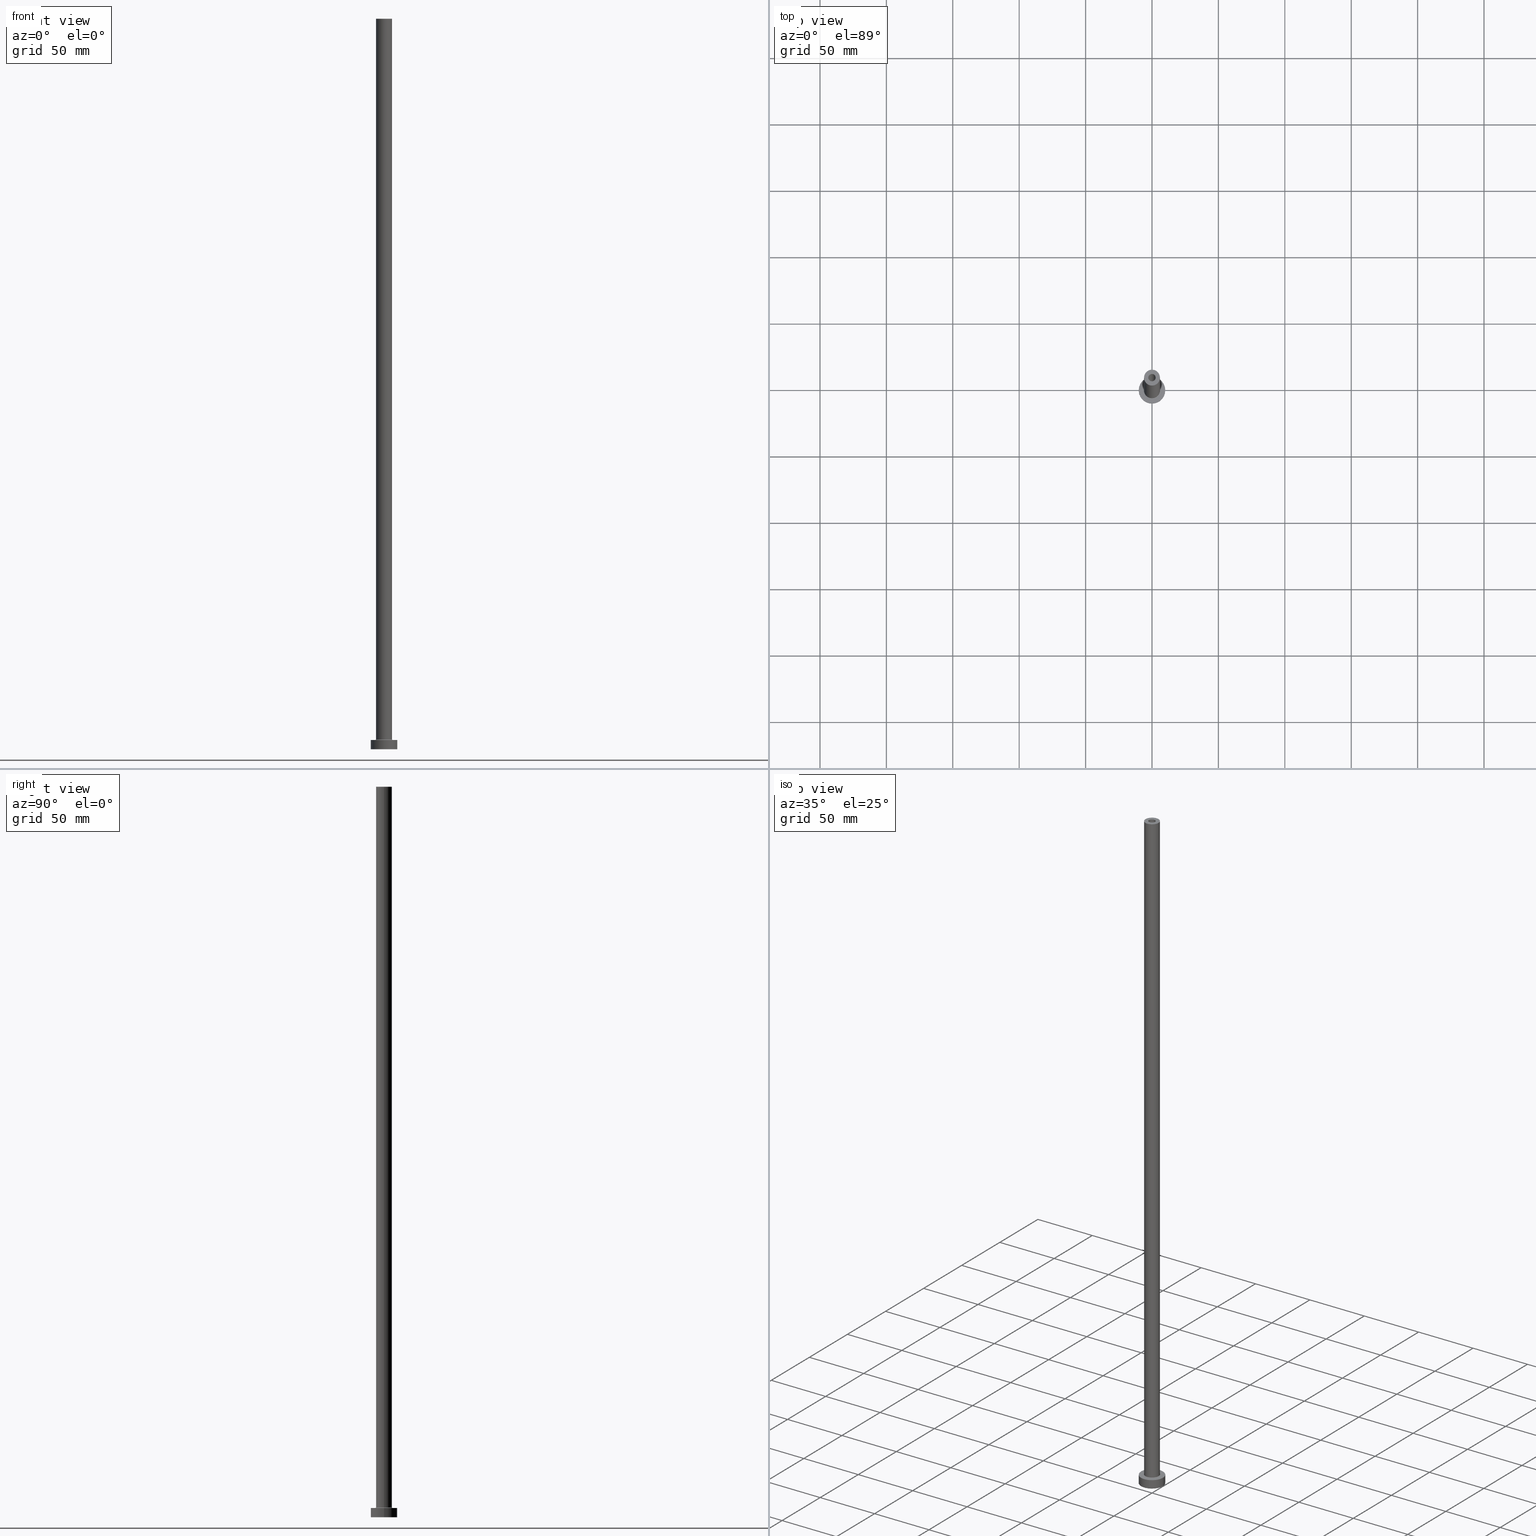
[diagram: canonical four-view strip — front | top / right | iso, engineering-drawing reading convention]
A machine part, canonical four-view strip (front | top / right | iso — engineering-drawing reading convention). The complete STEP part file that produces these views, byte-faithful:
ISO-10303-21;
HEADER;
FILE_DESCRIPTION (( 'STEP AP203' ),
    '1' );
FILE_NAME ('c97c.STEP',
    '2023-02-13T15:53:16',
    ( '' ),
    ( '' ),
    'SwSTEP 2.0',
    'SolidWorks 2019',
    '' );
FILE_SCHEMA (( 'CONFIG_CONTROL_DESIGN' ));
ENDSEC;

DATA;
#1 = DIRECTION ( 'NONE',  ( 1.000000000000000000, 0.000000000000000000, 0.000000000000000000 ) ) ;
#2 = AXIS2_PLACEMENT_3D ( 'NONE', #391, #382, #165 ) ;
#3 = APPROVAL_PERSON_ORGANIZATION ( #127, #420, #446 ) ;
#4 = PRODUCT ( 'c97c', 'c97c', '', ( #365 ) ) ;
#5 = FACE_OUTER_BOUND ( 'NONE', #49, .T. ) ;
#6 = COORDINATED_UNIVERSAL_TIME_OFFSET ( 1, 0, .AHEAD. ) ;
#7 = PLANE ( 'NONE',  #419 ) ;
#8 = CYLINDRICAL_SURFACE ( 'NONE', #136, 10.00000000000000000 ) ;
#9 = VERTEX_POINT ( 'NONE', #356 ) ;
#10 = CIRCLE ( 'NONE', #328, 0.5000000000000004441 ) ;
#11 = FACE_OUTER_BOUND ( 'NONE', #449, .T. ) ;
#12 = DIRECTION ( 'NONE',  ( 1.000000000000000000, 0.000000000000000000, 0.000000000000000000 ) ) ;
#13 = DIRECTION ( 'NONE',  ( 1.000000000000000000, 0.000000000000000000, -0.000000000000000000 ) ) ;
#14 = ORIENTED_EDGE ( 'NONE', *, *, #34, .F. ) ;
#15 = PERSON_AND_ORGANIZATION ( #164, #341 ) ;
#16 = UNCERTAINTY_MEASURE_WITH_UNIT (LENGTH_MEASURE( 1.000000000000000082E-05 ), #322, 'distance_accuracy_value', 'NONE');
#17 = EDGE_CURVE ( 'NONE', #78, #46, #110, .T. ) ;
#18 = DIRECTION ( 'NONE',  ( 0.000000000000000000, 0.000000000000000000, 1.000000000000000000 ) ) ;
#19 = DIRECTION ( 'NONE',  ( -1.000000000000000000, 1.224646799147351482E-16, 0.000000000000000000 ) ) ;
#20 = CIRCLE ( 'NONE', #133, 2.750000000000000000 ) ;
#21 = ORIENTED_EDGE ( 'NONE', *, *, #119, .F. ) ;
#22 = CC_DESIGN_DATE_AND_TIME_ASSIGNMENT ( #293, #433, ( #58 ) ) ;
#23 = EDGE_LOOP ( 'NONE', ( #443, #396, #50, #105 ) ) ;
#24 = CIRCLE ( 'NONE', #401, 2.750000000000000000 ) ;
#25 = DIRECTION ( 'NONE',  ( 1.000000000000000000, 0.000000000000000000, 0.000000000000000000 ) ) ;
#26 = FACE_OUTER_BOUND ( 'NONE', #415, .T. ) ;
#27 = FACE_OUTER_BOUND ( 'NONE', #381, .T. ) ;
#28 = DIRECTION ( 'NONE',  ( 0.000000000000000000, 0.000000000000000000, 1.000000000000000000 ) ) ;
#29 = DIRECTION ( 'NONE',  ( 0.000000000000000000, 0.000000000000000000, 1.000000000000000000 ) ) ;
#30 = DIRECTION ( 'NONE',  ( 0.000000000000000000, 0.000000000000000000, 1.000000000000000000 ) ) ;
#31 = PERSON_AND_ORGANIZATION ( #164, #341 ) ;
#32 = CARTESIAN_POINT ( 'NONE',  ( 0.000000000000000000, 0.000000000000000000, 550.0000000000000000 ) ) ;
#33 = DIRECTION ( 'NONE',  ( -0.000000000000000000, -0.000000000000000000, -1.000000000000000000 ) ) ;
#34 = EDGE_CURVE ( 'NONE', #129, #225, #292, .T. ) ;
#35 = AXIS2_PLACEMENT_3D ( 'NONE', #423, #232, #368 ) ;
#36 = DIRECTION ( 'NONE',  ( 0.000000000000000000, 0.000000000000000000, 1.000000000000000000 ) ) ;
#37 = CARTESIAN_POINT ( 'NONE',  ( 0.000000000000000000, 0.000000000000000000, 7.000000000000000000 ) ) ;
#38 = CARTESIAN_POINT ( 'NONE',  ( -6.000000000000000888, 0.000000000000000000, 7.499999999999951150 ) ) ;
#39 = CARTESIAN_POINT ( 'NONE',  ( 0.000000000000000000, 0.000000000000000000, 7.000000000000000000 ) ) ;
#40 = DIRECTION ( 'NONE',  ( 1.000000000000000000, 0.000000000000000000, 0.000000000000000000 ) ) ;
#41 = APPROVAL_DATE_TIME ( #357, #408 ) ;
#42 = DIRECTION ( 'NONE',  ( -1.000000000000000000, 0.000000000000000000, 0.000000000000000000 ) ) ;
#43 = CYLINDRICAL_SURFACE ( 'NONE', #206, 2.750000000000000000 ) ;
#44 = DIRECTION ( 'NONE',  ( 0.000000000000000000, 0.000000000000000000, -1.000000000000000000 ) ) ;
#45 = PERSON_AND_ORGANIZATION_ROLE ( 'design_owner' ) ;
#46 = VERTEX_POINT ( 'NONE', #211 ) ;
#47 = CARTESIAN_POINT ( 'NONE',  ( -10.00000000000000000, 0.000000000000000000, 0.000000000000000000 ) ) ;
#48 = LOCAL_TIME ( 16, 53, 16.00000000000000000, #351 ) ;
#49 = EDGE_LOOP ( 'NONE', ( #377, #74, #88, #384 ) ) ;
#50 = ORIENTED_EDGE ( 'NONE', *, *, #234, .T. ) ;
#51 = AXIS2_PLACEMENT_3D ( 'NONE', #337, #70, #42 ) ;
#52 = CARTESIAN_POINT ( 'NONE',  ( 0.000000000000000000, 0.000000000000000000, 7.000000000000000000 ) ) ;
#53 = ORIENTED_EDGE ( 'NONE', *, *, #119, .T. ) ;
#54 = EDGE_CURVE ( 'NONE', #159, #332, #224, .T. ) ;
#55 = EDGE_CURVE ( 'NONE', #129, #301, #20, .T. ) ;
#56 = AXIS2_PLACEMENT_3D ( 'NONE', #262, #148, #118 ) ;
#57 = VECTOR ( 'NONE', #190, 1000.000000000000000 ) ;
#58 = PRODUCT_DEFINITION ( 'NEZN�M�', '', #166, #447 ) ;
#59 = ORIENTED_EDGE ( 'NONE', *, *, #234, .F. ) ;
#60 = CARTESIAN_POINT ( 'NONE',  ( -6.500000000000000888, 7.960204194457796463E-16, 7.499999999999951150 ) ) ;
#61 = AXIS2_PLACEMENT_3D ( 'NONE', #424, #389, #1 ) ;
#62 = DIRECTION ( 'NONE',  ( 1.000000000000000000, 0.000000000000000000, -0.000000000000000000 ) ) ;
#63 = EDGE_CURVE ( 'NONE', #268, #143, #404, .T. ) ;
#64 = DIRECTION ( 'NONE',  ( 0.000000000000000000, 0.000000000000000000, -1.000000000000000000 ) ) ;
#65 = DIRECTION ( 'NONE',  ( -0.000000000000000000, -0.000000000000000000, -1.000000000000000000 ) ) ;
#66 = CC_DESIGN_PERSON_AND_ORGANIZATION_ASSIGNMENT ( #451, #163, ( #166 ) ) ;
#67 = ADVANCED_FACE ( 'NONE', ( #11 ), #242, .F. ) ;
#68 = VECTOR ( 'NONE', #33, 1000.000000000000000 ) ;
#69 = PLANE ( 'NONE',  #2 ) ;
#70 = DIRECTION ( 'NONE',  ( 0.000000000000000000, 0.000000000000000000, -1.000000000000000000 ) ) ;
#71 = CC_DESIGN_PERSON_AND_ORGANIZATION_ASSIGNMENT ( #31, #318, ( #58 ) ) ;
#72 = APPROVAL_DATE_TIME ( #393, #440 ) ;
#73 = CARTESIAN_POINT ( 'NONE',  ( 0.000000000000000000, 0.000000000000000000, 505.0000000000000000 ) ) ;
#74 = ORIENTED_EDGE ( 'NONE', *, *, #314, .T. ) ;
#75 = FACE_OUTER_BOUND ( 'NONE', #409, .T. ) ;
#76 = CARTESIAN_POINT ( 'NONE',  ( -2.750000000000000000, 0.000000000000000000, 550.0000000000000000 ) ) ;
#77 = DIRECTION ( 'NONE',  ( -1.000000000000000000, 0.000000000000000000, 0.000000000000000000 ) ) ;
#78 = VERTEX_POINT ( 'NONE', #91 ) ;
#79 = FACE_BOUND ( 'NONE', #280, .T. ) ;
#80 = DIRECTION ( 'NONE',  ( 1.000000000000000000, 0.000000000000000000, 0.000000000000000000 ) ) ;
#81 = EDGE_CURVE ( 'NONE', #301, #218, #192, .T. ) ;
#82 = CARTESIAN_POINT ( 'NONE',  ( 0.000000000000000000, 0.000000000000000000, 550.0000000000000000 ) ) ;
#83 = AXIS2_PLACEMENT_3D ( 'NONE', #402, #85, #442 ) ;
#84 = CIRCLE ( 'NONE', #261, 2.899999999999999911 ) ;
#85 = DIRECTION ( 'NONE',  ( 0.000000000000000000, -1.000000000000000000, 0.000000000000000000 ) ) ;
#86 = ORIENTED_EDGE ( 'NONE', *, *, #147, .F. ) ;
#87 = CARTESIAN_POINT ( 'NONE',  ( 2.899999999999999911, 3.551475717527323832E-16, 513.2024386617638356 ) ) ;
#88 = ORIENTED_EDGE ( 'NONE', *, *, #34, .T. ) ;
#89 = DIRECTION ( 'NONE',  ( 0.000000000000000000, 0.000000000000000000, 1.000000000000000000 ) ) ;
#90 = ORIENTED_EDGE ( 'NONE', *, *, #137, .F. ) ;
#91 = CARTESIAN_POINT ( 'NONE',  ( 10.00000000000000000, 1.224646799147353256E-15, 7.000000000000000000 ) ) ;
#92 = ADVANCED_FACE ( 'NONE', ( #444 ), #273, .F. ) ;
#93 = ORIENTED_EDGE ( 'NONE', *, *, #287, .F. ) ;
#94 = AXIS2_PLACEMENT_3D ( 'NONE', #417, #89, #195 ) ;
#95 = ORIENTED_EDGE ( 'NONE', *, *, #461, .F. ) ;
#96 = COORDINATED_UNIVERSAL_TIME_OFFSET ( 1, 0, .AHEAD. ) ;
#97 = APPROVAL_STATUS ( 'not_yet_approved' ) ;
#98 = CARTESIAN_POINT ( 'NONE',  ( 0.000000000000000000, 0.000000000000000000, 0.000000000000000000 ) ) ;
#99 = CC_DESIGN_PERSON_AND_ORGANIZATION_ASSIGNMENT ( #196, #122, ( #429 ) ) ;
#100 = ORIENTED_EDGE ( 'NONE', *, *, #193, .F. ) ;
#101 = EDGE_CURVE ( 'NONE', #46, #156, #114, .T. ) ;
#102 = FACE_OUTER_BOUND ( 'NONE', #230, .T. ) ;
#103 = ORIENTED_EDGE ( 'NONE', *, *, #385, .F. ) ;
#104 = APPROVAL_STATUS ( 'not_yet_approved' ) ;
#105 = ORIENTED_EDGE ( 'NONE', *, *, #137, .T. ) ;
#106 = CARTESIAN_POINT ( 'NONE',  ( -6.000000000000000888, 0.000000000000000000, 550.0000000000000000 ) ) ;
#107 = PERSON_AND_ORGANIZATION ( #164, #341 ) ;
#108 = PLANE ( 'NONE',  #112 ) ;
#109 = CARTESIAN_POINT ( 'NONE',  ( 0.000000000000000000, 0.000000000000000000, 7.499999999999951150 ) ) ;
#110 = LINE ( 'NONE', #115, #216 ) ;
#111 = CALENDAR_DATE ( 2023, 13, 2 ) ;
#112 = AXIS2_PLACEMENT_3D ( 'NONE', #425, #390, #354 ) ;
#113 = AXIS2_PLACEMENT_3D ( 'NONE', #52, #65, #204 ) ;
#114 = CIRCLE ( 'NONE', #300, 10.00000000000000000 ) ;
#115 = CARTESIAN_POINT ( 'NONE',  ( 10.00000000000000000, 1.224646799147353256E-15, 7.000000000000000000 ) ) ;
#116 =( NAMED_UNIT ( * ) SI_UNIT ( $, .STERADIAN. ) SOLID_ANGLE_UNIT ( ) );
#117 = ORIENTED_EDGE ( 'NONE', *, *, #405, .F. ) ;
#118 = DIRECTION ( 'NONE',  ( 1.000000000000000000, 0.000000000000000000, 0.000000000000000000 ) ) ;
#119 = EDGE_CURVE ( 'NONE', #159, #271, #151, .T. ) ;
#120 = CARTESIAN_POINT ( 'NONE',  ( 0.000000000000000000, 0.000000000000000000, 0.000000000000000000 ) ) ;
#121 = EDGE_LOOP ( 'NONE', ( #229, #334 ) ) ;
#122 = PERSON_AND_ORGANIZATION_ROLE ( 'classification_officer' ) ;
#123 = CIRCLE ( 'NONE', #246, 2.899999999999999911 ) ;
#124 = APPROVAL_PERSON_ORGANIZATION ( #107, #408, #397 ) ;
#125 = ADVANCED_FACE ( 'NONE', ( #400 ), #149, .T. ) ;
#126 = VERTEX_POINT ( 'NONE', #141 ) ;
#127 = PERSON_AND_ORGANIZATION ( #164, #341 ) ;
#128 = ORIENTED_EDGE ( 'NONE', *, *, #338, .F. ) ;
#129 = VERTEX_POINT ( 'NONE', #76 ) ;
#130 = EDGE_CURVE ( 'NONE', #126, #285, #215, .T. ) ;
#131 = CIRCLE ( 'NONE', #231, 6.000000000000000888 ) ;
#132 = CC_DESIGN_APPROVAL ( #440, ( #58 ) ) ;
#133 = AXIS2_PLACEMENT_3D ( 'NONE', #349, #36, #321 ) ;
#134 = DIRECTION ( 'NONE',  ( 1.000000000000000000, 0.000000000000000000, 0.000000000000000000 ) ) ;
#135 = CIRCLE ( 'NONE', #260, 6.000000000000000888 ) ;
#136 = AXIS2_PLACEMENT_3D ( 'NONE', #253, #436, #77 ) ;
#137 = EDGE_CURVE ( 'NONE', #198, #285, #131, .T. ) ;
#138 = CYLINDRICAL_SURFACE ( 'NONE', #445, 2.750000000000000000 ) ;
#139 = DIRECTION ( 'NONE',  ( -0.000000000000000000, -0.000000000000000000, -1.000000000000000000 ) ) ;
#140 = CALENDAR_DATE ( 2023, 13, 2 ) ;
#141 = CARTESIAN_POINT ( 'NONE',  ( 6.000000000000000888, 7.347880794884120722E-16, 550.0000000000000000 ) ) ;
#142 = DIRECTION ( 'NONE',  ( 0.000000000000000000, 0.000000000000000000, 1.000000000000000000 ) ) ;
#143 = VERTEX_POINT ( 'NONE', #208 ) ;
#144 = ORIENTED_EDGE ( 'NONE', *, *, #461, .T. ) ;
#145 = ORIENTED_EDGE ( 'NONE', *, *, #167, .F. ) ;
#146 = DIRECTION ( 'NONE',  ( 1.000000000000000000, 0.000000000000000000, 0.000000000000000000 ) ) ;
#147 = EDGE_CURVE ( 'NONE', #143, #268, #455, .T. ) ;
#148 = DIRECTION ( 'NONE',  ( 0.000000000000000000, 0.000000000000000000, 1.000000000000000000 ) ) ;
#149 = CYLINDRICAL_SURFACE ( 'NONE', #369, 6.000000000000000888 ) ;
#150 =( GEOMETRIC_REPRESENTATION_CONTEXT ( 3 ) GLOBAL_UNCERTAINTY_ASSIGNED_CONTEXT ( ( #16 ) ) GLOBAL_UNIT_ASSIGNED_CONTEXT ( ( #322, #265, #116 ) ) REPRESENTATION_CONTEXT ( 'NONE', 'WORKASPACE' ) );
#151 = CIRCLE ( 'NONE', #422, 2.899999999999999911 ) ;
#152 = ORIENTED_EDGE ( 'NONE', *, *, #257, .T. ) ;
#153 = DIRECTION ( 'NONE',  ( -1.000000000000000000, 0.000000000000000000, 0.000000000000000000 ) ) ;
#154 = DIRECTION ( 'NONE',  ( 1.000000000000000000, 0.000000000000000000, 0.000000000000000000 ) ) ;
#155 = CARTESIAN_POINT ( 'NONE',  ( -2.899999999999999911, 0.000000000000000000, 505.0000000000000000 ) ) ;
#156 = VERTEX_POINT ( 'NONE', #47 ) ;
#157 = ORIENTED_EDGE ( 'NONE', *, *, #81, .T. ) ;
#158 = ADVANCED_FACE ( 'NONE', ( #184, #331 ), #431, .F. ) ;
#159 = VERTEX_POINT ( 'NONE', #155 ) ;
#160 = APPROVAL_PERSON_ORGANIZATION ( #209, #440, #170 ) ;
#161 = CARTESIAN_POINT ( 'NONE',  ( 2.750000000000000000, 3.367778697655221012E-16, 505.0000000000000000 ) ) ;
#162 = ORIENTED_EDGE ( 'NONE', *, *, #178, .T. ) ;
#163 = PERSON_AND_ORGANIZATION_ROLE ( 'design_supplier' ) ;
#164 = PERSON ( 'NEUR�EN�', 'NEUR�EN�', 'NEUR�EN�', ('NEUR�EN�'), ('NEUR�EN�'), ('NEUR�EN�') ) ;
#165 = DIRECTION ( 'NONE',  ( 1.000000000000000000, 0.000000000000000000, -0.000000000000000000 ) ) ;
#166 = PRODUCT_DEFINITION_FORMATION_WITH_SPECIFIED_SOURCE ( 'LIBOVOLN�', '', #4, .NOT_KNOWN. ) ;
#167 = EDGE_CURVE ( 'NONE', #323, #332, #200, .T. ) ;
#168 = APPLICATION_CONTEXT ( 'configuration controlled 3d designs of mechanical parts and assemblies' ) ;
#169 = FACE_BOUND ( 'NONE', #121, .T. ) ;
#170 = APPROVAL_ROLE ( '' ) ;
#171 = VECTOR ( 'NONE', #235, 1000.000000000000000 ) ;
#172 = VECTOR ( 'NONE', #44, 1000.000000000000000 ) ;
#173 = ORIENTED_EDGE ( 'NONE', *, *, #54, .F. ) ;
#174 = CARTESIAN_POINT ( 'NONE',  ( 0.000000000000000000, 0.000000000000000000, 550.0000000000000000 ) ) ;
#175 = DIRECTION ( 'NONE',  ( -1.000000000000000000, 0.000000000000000000, 0.000000000000000000 ) ) ;
#176 = DIRECTION ( 'NONE',  ( -0.000000000000000000, -0.000000000000000000, -1.000000000000000000 ) ) ;
#177 = FACE_OUTER_BOUND ( 'NONE', #199, .T. ) ;
#178 = EDGE_CURVE ( 'NONE', #285, #268, #346, .T. ) ;
#179 = EDGE_LOOP ( 'NONE', ( #245, #413 ) ) ;
#180 = CALENDAR_DATE ( 2023, 13, 2 ) ;
#181 = CARTESIAN_POINT ( 'NONE',  ( 0.000000000000000000, 0.000000000000000000, 550.0000000000000000 ) ) ;
#182 = DIRECTION ( 'NONE',  ( -0.000000000000000000, -0.000000000000000000, -1.000000000000000000 ) ) ;
#183 = DIRECTION ( 'NONE',  ( -0.000000000000000000, -0.000000000000000000, -1.000000000000000000 ) ) ;
#184 = FACE_BOUND ( 'NONE', #407, .T. ) ;
#185 = LOCAL_TIME ( 16, 53, 16.00000000000000000, #259 ) ;
#186 = ORIENTED_EDGE ( 'NONE', *, *, #210, .F. ) ;
#187 = APPLICATION_PROTOCOL_DEFINITION ( 'international standard', 'config_control_design', 1994, #168 ) ;
#188 = EDGE_LOOP ( 'NONE', ( #457, #202, #450, #152 ) ) ;
#189 = DIRECTION ( 'NONE',  ( 0.000000000000000000, 0.000000000000000000, -1.000000000000000000 ) ) ;
#190 = DIRECTION ( 'NONE',  ( 0.000000000000000000, 0.000000000000000000, -1.000000000000000000 ) ) ;
#191 = ORIENTED_EDGE ( 'NONE', *, *, #63, .T. ) ;
#192 = LINE ( 'NONE', #375, #57 ) ;
#193 = EDGE_CURVE ( 'NONE', #225, #218, #24, .T. ) ;
#194 = ORIENTED_EDGE ( 'NONE', *, *, #426, .T. ) ;
#195 = DIRECTION ( 'NONE',  ( 1.000000000000000000, 0.000000000000000000, 0.000000000000000000 ) ) ;
#196 = PERSON_AND_ORGANIZATION ( #164, #341 ) ;
#197 = ORIENTED_EDGE ( 'NONE', *, *, #257, .F. ) ;
#198 = VERTEX_POINT ( 'NONE', #38 ) ;
#199 = EDGE_LOOP ( 'NONE', ( #281, #157, #100, #14 ) ) ;
#200 = CIRCLE ( 'NONE', #309, 2.899999999999999911 ) ;
#201 = LOCAL_TIME ( 16, 53, 16.00000000000000000, #96 ) ;
#202 = ORIENTED_EDGE ( 'NONE', *, *, #275, .F. ) ;
#203 = ADVANCED_FACE ( 'NONE', ( #5 ), #138, .F. ) ;
#204 = DIRECTION ( 'NONE',  ( -1.000000000000000000, 0.000000000000000000, 0.000000000000000000 ) ) ;
#205 = DIRECTION ( 'NONE',  ( -1.000000000000000000, 0.000000000000000000, 0.000000000000000000 ) ) ;
#206 = AXIS2_PLACEMENT_3D ( 'NONE', #428, #64, #205 ) ;
#207 = VECTOR ( 'NONE', #360, 1000.000000000000000 ) ;
#208 = CARTESIAN_POINT ( 'NONE',  ( -6.500000000000000888, 7.960204194457796463E-16, 6.999999999999975131 ) ) ;
#209 = PERSON_AND_ORGANIZATION ( #164, #341 ) ;
#210 = EDGE_CURVE ( 'NONE', #271, #323, #406, .T. ) ;
#211 = CARTESIAN_POINT ( 'NONE',  ( 10.00000000000000000, 1.224646799147353256E-15, 0.000000000000000000 ) ) ;
#212 = CARTESIAN_POINT ( 'NONE',  ( 0.000000000000000000, 0.000000000000000000, 0.000000000000000000 ) ) ;
#213 = AXIS2_PLACEMENT_3D ( 'NONE', #367, #189, #175 ) ;
#214 = CARTESIAN_POINT ( 'NONE',  ( 6.000000000000000888, 7.347880794884120722E-16, 7.499999999999951150 ) ) ;
#215 = LINE ( 'NONE', #294, #421 ) ;
#216 = VECTOR ( 'NONE', #139, 1000.000000000000000 ) ;
#217 = CARTESIAN_POINT ( 'NONE',  ( 0.000000000000000000, 0.000000000000000000, 505.0000000000000000 ) ) ;
#218 = VERTEX_POINT ( 'NONE', #161 ) ;
#219 = DIRECTION ( 'NONE',  ( 0.000000000000000000, 0.000000000000000000, 1.000000000000000000 ) ) ;
#220 = DIRECTION ( 'NONE',  ( 0.000000000000000000, 0.000000000000000000, 1.000000000000000000 ) ) ;
#221 = DIRECTION ( 'NONE',  ( 0.000000000000000000, 0.000000000000000000, 1.000000000000000000 ) ) ;
#222 = APPLICATION_CONTEXT ( 'configuration controlled 3d designs of mechanical parts and assemblies' ) ;
#223 = EDGE_CURVE ( 'NONE', #308, #126, #135, .T. ) ;
#224 = LINE ( 'NONE', #298, #172 ) ;
#225 = VERTEX_POINT ( 'NONE', #249 ) ;
#226 = CARTESIAN_POINT ( 'NONE',  ( -10.00000000000000000, 0.000000000000000000, 7.000000000000000000 ) ) ;
#227 = DIRECTION ( 'NONE',  ( -0.000000000000000000, -0.000000000000000000, -1.000000000000000000 ) ) ;
#228 = ORIENTED_EDGE ( 'NONE', *, *, #426, .F. ) ;
#229 = ORIENTED_EDGE ( 'NONE', *, *, #193, .T. ) ;
#230 = EDGE_LOOP ( 'NONE', ( #186, #194, #236, #364 ) ) ;
#231 = AXIS2_PLACEMENT_3D ( 'NONE', #109, #352, #303 ) ;
#232 = DIRECTION ( 'NONE',  ( 0.000000000000000000, 0.000000000000000000, 1.000000000000000000 ) ) ;
#233 = COORDINATED_UNIVERSAL_TIME_OFFSET ( 1, 0, .AHEAD. ) ;
#234 = EDGE_CURVE ( 'NONE', #308, #198, #392, .T. ) ;
#235 = DIRECTION ( 'NONE',  ( 0.000000000000000000, 0.000000000000000000, -1.000000000000000000 ) ) ;
#236 = ORIENTED_EDGE ( 'NONE', *, *, #54, .T. ) ;
#237 = EDGE_LOOP ( 'NONE', ( #117, #264, #395, #93 ) ) ;
#238 = TOROIDAL_SURFACE ( 'NONE', #56, 6.500000000000000888, 0.5000000000000000000 ) ;
#239 = AXIS2_PLACEMENT_3D ( 'NONE', #212, #289, #403 ) ;
#240 = EDGE_CURVE ( 'NONE', #332, #323, #123, .T. ) ;
#241 = APPROVAL_DATE_TIME ( #279, #420 ) ;
#242 = TOROIDAL_SURFACE ( 'NONE', #35, 6.500000000000000888, 0.5000000000000000000 ) ;
#243 = ORIENTED_EDGE ( 'NONE', *, *, #385, .T. ) ;
#244 = ORIENTED_EDGE ( 'NONE', *, *, #314, .F. ) ;
#245 = ORIENTED_EDGE ( 'NONE', *, *, #275, .T. ) ;
#246 = AXIS2_PLACEMENT_3D ( 'NONE', #295, #434, #288 ) ;
#247 = LOCAL_TIME ( 16, 53, 16.00000000000000000, #6 ) ;
#248 = AXIS2_PLACEMENT_3D ( 'NONE', #39, #182, #258 ) ;
#249 = CARTESIAN_POINT ( 'NONE',  ( -2.750000000000000000, 0.000000000000000000, 505.0000000000000000 ) ) ;
#250 = ADVANCED_FACE ( 'NONE', ( #169, #27 ), #69, .F. ) ;
#251 = CIRCLE ( 'NONE', #272, 10.00000000000000000 ) ;
#252 = CC_DESIGN_APPROVAL ( #420, ( #429 ) ) ;
#253 = CARTESIAN_POINT ( 'NONE',  ( 0.000000000000000000, 0.000000000000000000, 7.000000000000000000 ) ) ;
#254 = CARTESIAN_POINT ( 'NONE',  ( -6.000000000000000888, 0.000000000000000000, 550.0000000000000000 ) ) ;
#255 = EDGE_LOOP ( 'NONE', ( #128, #340, #144, #59 ) ) ;
#256 = APPROVAL_STATUS ( 'not_yet_approved' ) ;
#257 = EDGE_CURVE ( 'NONE', #156, #46, #251, .T. ) ;
#258 = DIRECTION ( 'NONE',  ( 1.000000000000000000, 0.000000000000000000, 0.000000000000000000 ) ) ;
#259 = COORDINATED_UNIVERSAL_TIME_OFFSET ( 1, 0, .AHEAD. ) ;
#260 = AXIS2_PLACEMENT_3D ( 'NONE', #448, #29, #134 ) ;
#261 = AXIS2_PLACEMENT_3D ( 'NONE', #361, #220, #146 ) ;
#262 = CARTESIAN_POINT ( 'NONE',  ( 0.000000000000000000, 0.000000000000000000, 7.499999999999951150 ) ) ;
#263 = DIRECTION ( 'NONE',  ( 0.000000000000000000, 0.000000000000000000, 1.000000000000000000 ) ) ;
#264 = ORIENTED_EDGE ( 'NONE', *, *, #17, .T. ) ;
#265 =( NAMED_UNIT ( * ) PLANE_ANGLE_UNIT ( ) SI_UNIT ( $, .RADIAN. ) );
#266 = DIRECTION ( 'NONE',  ( -0.000000000000000000, -0.000000000000000000, -1.000000000000000000 ) ) ;
#267 = CARTESIAN_POINT ( 'NONE',  ( 0.000000000000000000, 0.000000000000000000, 7.499999999999951150 ) ) ;
#268 = VERTEX_POINT ( 'NONE', #286 ) ;
#269 = DIRECTION ( 'NONE',  ( 0.000000000000000000, 0.000000000000000000, 1.000000000000000000 ) ) ;
#270 = CALENDAR_DATE ( 2023, 13, 2 ) ;
#271 = VERTEX_POINT ( 'NONE', #282 ) ;
#272 = AXIS2_PLACEMENT_3D ( 'NONE', #98, #315, #25 ) ;
#273 = CYLINDRICAL_SURFACE ( 'NONE', #51, 2.899999999999999911 ) ;
#274 = EDGE_LOOP ( 'NONE', ( #53, #416, #366, #173 ) ) ;
#275 = EDGE_CURVE ( 'NONE', #9, #78, #387, .T. ) ;
#276 = ADVANCED_BREP_SHAPE_REPRESENTATION ( 'c97c', ( #414, #239 ), #150 ) ;
#277 = LOCAL_TIME ( 16, 53, 16.00000000000000000, #233 ) ;
#278 = DIRECTION ( 'NONE',  ( 1.224646799147353207E-16, 1.000000000000000000, -0.000000000000000000 ) ) ;
#279 = DATE_AND_TIME ( #311, #277 ) ;
#280 = EDGE_LOOP ( 'NONE', ( #305, #244 ) ) ;
#281 = ORIENTED_EDGE ( 'NONE', *, *, #55, .T. ) ;
#282 = CARTESIAN_POINT ( 'NONE',  ( 2.899999999999999911, 3.551475717527323832E-16, 505.0000000000000000 ) ) ;
#283 = PRODUCT_RELATED_PRODUCT_CATEGORY ( 'detail', '', ( #4 ) ) ;
#284 = ADVANCED_FACE ( 'NONE', ( #102 ), #410, .F. ) ;
#285 = VERTEX_POINT ( 'NONE', #214 ) ;
#286 = CARTESIAN_POINT ( 'NONE',  ( 6.500000000000000888, 0.000000000000000000, 6.999999999999975131 ) ) ;
#287 = EDGE_CURVE ( 'NONE', #9, #156, #399, .T. ) ;
#288 = DIRECTION ( 'NONE',  ( 1.000000000000000000, 0.000000000000000000, 0.000000000000000000 ) ) ;
#289 = DIRECTION ( 'NONE',  ( 0.000000000000000000, 0.000000000000000000, 1.000000000000000000 ) ) ;
#290 = CARTESIAN_POINT ( 'NONE',  ( 0.000000000000000000, 0.000000000000000000, 0.000000000000000000 ) ) ;
#291 = ADVANCED_FACE ( 'NONE', ( #75 ), #238, .F. ) ;
#292 = LINE ( 'NONE', #432, #207 ) ;
#293 = DATE_AND_TIME ( #140, #247 ) ;
#294 = CARTESIAN_POINT ( 'NONE',  ( 6.000000000000000888, 7.347880794884120722E-16, 550.0000000000000000 ) ) ;
#295 = CARTESIAN_POINT ( 'NONE',  ( 0.000000000000000000, 0.000000000000000000, 0.000000000000000000 ) ) ;
#296 = DIRECTION ( 'NONE',  ( -1.000000000000000000, 0.000000000000000000, 0.000000000000000000 ) ) ;
#297 = CIRCLE ( 'NONE', #94, 2.750000000000000000 ) ;
#298 = CARTESIAN_POINT ( 'NONE',  ( -2.899999999999999911, 0.000000000000000000, 513.2024386617638356 ) ) ;
#299 = FACE_OUTER_BOUND ( 'NONE', #23, .T. ) ;
#300 = AXIS2_PLACEMENT_3D ( 'NONE', #394, #28, #154 ) ;
#301 = VERTEX_POINT ( 'NONE', #437 ) ;
#302 = DIRECTION ( 'NONE',  ( 0.000000000000000000, 0.000000000000000000, 1.000000000000000000 ) ) ;
#303 = DIRECTION ( 'NONE',  ( 1.000000000000000000, 0.000000000000000000, 0.000000000000000000 ) ) ;
#304 = CYLINDRICAL_SURFACE ( 'NONE', #113, 10.00000000000000000 ) ;
#305 = ORIENTED_EDGE ( 'NONE', *, *, #55, .F. ) ;
#306 = ADVANCED_FACE ( 'NONE', ( #79, #26 ), #108, .T. ) ;
#307 = PERSON_AND_ORGANIZATION_ROLE ( 'creator' ) ;
#308 = VERTEX_POINT ( 'NONE', #106 ) ;
#309 = AXIS2_PLACEMENT_3D ( 'NONE', #120, #355, #359 ) ;
#310 = AXIS2_PLACEMENT_3D ( 'NONE', #327, #18, #12 ) ;
#311 = CALENDAR_DATE ( 2023, 13, 2 ) ;
#312 = CIRCLE ( 'NONE', #343, 6.000000000000000888 ) ;
#313 = ORIENTED_EDGE ( 'NONE', *, *, #178, .F. ) ;
#314 = EDGE_CURVE ( 'NONE', #301, #129, #379, .T. ) ;
#315 = DIRECTION ( 'NONE',  ( 0.000000000000000000, 0.000000000000000000, 1.000000000000000000 ) ) ;
#316 = CC_DESIGN_SECURITY_CLASSIFICATION ( #429, ( #166 ) ) ;
#317 = PRODUCT_DEFINITION_SHAPE ( 'NONE', 'NONE',  #58 ) ;
#318 = PERSON_AND_ORGANIZATION_ROLE ( 'creator' ) ;
#319 = DIRECTION ( 'NONE',  ( -1.000000000000000000, 0.000000000000000000, 0.000000000000000000 ) ) ;
#320 = FACE_OUTER_BOUND ( 'NONE', #179, .T. ) ;
#321 = DIRECTION ( 'NONE',  ( 1.000000000000000000, 0.000000000000000000, 0.000000000000000000 ) ) ;
#322 =( LENGTH_UNIT ( ) NAMED_UNIT ( * ) SI_UNIT ( .MILLI., .METRE. ) );
#323 = VERTEX_POINT ( 'NONE', #324 ) ;
#324 = CARTESIAN_POINT ( 'NONE',  ( 2.899999999999999911, 3.551475717527323832E-16, 0.000000000000000000 ) ) ;
#325 = CYLINDRICAL_SURFACE ( 'NONE', #438, 6.000000000000000888 ) ;
#326 = DIRECTION ( 'NONE',  ( -0.000000000000000000, -0.000000000000000000, -1.000000000000000000 ) ) ;
#327 = CARTESIAN_POINT ( 'NONE',  ( 0.000000000000000000, 0.000000000000000000, 7.000000000000000000 ) ) ;
#328 = AXIS2_PLACEMENT_3D ( 'NONE', #60, #278, #19 ) ;
#329 = ORIENTED_EDGE ( 'NONE', *, *, #338, .T. ) ;
#330 = EDGE_CURVE ( 'NONE', #218, #225, #297, .T. ) ;
#331 = FACE_OUTER_BOUND ( 'NONE', #386, .T. ) ;
#332 = VERTEX_POINT ( 'NONE', #335 ) ;
#333 = FACE_OUTER_BOUND ( 'NONE', #237, .T. ) ;
#334 = ORIENTED_EDGE ( 'NONE', *, *, #330, .T. ) ;
#335 = CARTESIAN_POINT ( 'NONE',  ( -2.899999999999999911, 0.000000000000000000, 0.000000000000000000 ) ) ;
#336 = VECTOR ( 'NONE', #326, 1000.000000000000000 ) ;
#337 = CARTESIAN_POINT ( 'NONE',  ( 0.000000000000000000, 0.000000000000000000, 513.2024386617638356 ) ) ;
#338 = EDGE_CURVE ( 'NONE', #126, #308, #312, .T. ) ;
#339 = ORIENTED_EDGE ( 'NONE', *, *, #223, .T. ) ;
#340 = ORIENTED_EDGE ( 'NONE', *, *, #130, .T. ) ;
#341 = ORGANIZATION ( 'NEUR�EN�', 'NEUR�EN�', '' ) ;
#342 = ADVANCED_FACE ( 'NONE', ( #177 ), #43, .F. ) ;
#343 = AXIS2_PLACEMENT_3D ( 'NONE', #82, #263, #353 ) ;
#344 = DIRECTION ( 'NONE',  ( 1.000000000000000000, 0.000000000000000000, 0.000000000000000000 ) ) ;
#345 = CARTESIAN_POINT ( 'NONE',  ( 0.000000000000000000, 0.000000000000000000, 7.000000000000000000 ) ) ;
#346 = CIRCLE ( 'NONE', #83, 0.5000000000000004441 ) ;
#347 = DIRECTION ( 'NONE',  ( 0.000000000000000000, 0.000000000000000000, -1.000000000000000000 ) ) ;
#348 = CIRCLE ( 'NONE', #380, 6.000000000000000888 ) ;
#349 = CARTESIAN_POINT ( 'NONE',  ( 0.000000000000000000, 0.000000000000000000, 550.0000000000000000 ) ) ;
#350 = CARTESIAN_POINT ( 'NONE',  ( 0.000000000000000000, 0.000000000000000000, 550.0000000000000000 ) ) ;
#351 = COORDINATED_UNIVERSAL_TIME_OFFSET ( 1, 0, .AHEAD. ) ;
#352 = DIRECTION ( 'NONE',  ( 0.000000000000000000, 0.000000000000000000, 1.000000000000000000 ) ) ;
#353 = DIRECTION ( 'NONE',  ( 1.000000000000000000, 0.000000000000000000, 0.000000000000000000 ) ) ;
#354 = DIRECTION ( 'NONE',  ( 1.000000000000000000, 0.000000000000000000, -0.000000000000000000 ) ) ;
#355 = DIRECTION ( 'NONE',  ( -0.000000000000000000, -0.000000000000000000, -1.000000000000000000 ) ) ;
#356 = CARTESIAN_POINT ( 'NONE',  ( -10.00000000000000000, 0.000000000000000000, 7.000000000000000000 ) ) ;
#357 = DATE_AND_TIME ( #111, #48 ) ;
#358 = DIRECTION ( 'NONE',  ( 1.000000000000000000, 0.000000000000000000, 0.000000000000000000 ) ) ;
#359 = DIRECTION ( 'NONE',  ( 1.000000000000000000, 0.000000000000000000, 0.000000000000000000 ) ) ;
#360 = DIRECTION ( 'NONE',  ( 0.000000000000000000, 0.000000000000000000, -1.000000000000000000 ) ) ;
#361 = CARTESIAN_POINT ( 'NONE',  ( 0.000000000000000000, 0.000000000000000000, 505.0000000000000000 ) ) ;
#362 = DIRECTION ( 'NONE',  ( 1.000000000000000000, 0.000000000000000000, 0.000000000000000000 ) ) ;
#363 = AXIS2_PLACEMENT_3D ( 'NONE', #290, #269, #13 ) ;
#364 = ORIENTED_EDGE ( 'NONE', *, *, #240, .T. ) ;
#365 = MECHANICAL_CONTEXT ( 'NONE', #168, 'mechanical' ) ;
#366 = ORIENTED_EDGE ( 'NONE', *, *, #167, .T. ) ;
#367 = CARTESIAN_POINT ( 'NONE',  ( 0.000000000000000000, 0.000000000000000000, 513.2024386617638356 ) ) ;
#368 = DIRECTION ( 'NONE',  ( 1.000000000000000000, 0.000000000000000000, 0.000000000000000000 ) ) ;
#369 = AXIS2_PLACEMENT_3D ( 'NONE', #32, #266, #319 ) ;
#370 = ORIENTED_EDGE ( 'NONE', *, *, #147, .T. ) ;
#371 = PERSON_AND_ORGANIZATION ( #164, #341 ) ;
#372 = FACE_OUTER_BOUND ( 'NONE', #188, .T. ) ;
#373 = ADVANCED_FACE ( 'NONE', ( #383, #320 ), #7, .T. ) ;
#374 = DATE_AND_TIME ( #270, #201 ) ;
#375 = CARTESIAN_POINT ( 'NONE',  ( 2.750000000000000000, 3.367778697655221012E-16, 550.0000000000000000 ) ) ;
#376 = CC_DESIGN_PERSON_AND_ORGANIZATION_ASSIGNMENT ( #15, #45, ( #4 ) ) ;
#377 = ORIENTED_EDGE ( 'NONE', *, *, #81, .F. ) ;
#378 = AXIS2_PLACEMENT_3D ( 'NONE', #350, #219, #40 ) ;
#379 = CIRCLE ( 'NONE', #378, 2.750000000000000000 ) ;
#380 = AXIS2_PLACEMENT_3D ( 'NONE', #267, #302, #344 ) ;
#381 = EDGE_LOOP ( 'NONE', ( #21, #228 ) ) ;
#382 = DIRECTION ( 'NONE',  ( 0.000000000000000000, 0.000000000000000000, 1.000000000000000000 ) ) ;
#383 = FACE_BOUND ( 'NONE', #456, .T. ) ;
#384 = ORIENTED_EDGE ( 'NONE', *, *, #330, .F. ) ;
#385 = EDGE_CURVE ( 'NONE', #198, #143, #10, .T. ) ;
#386 = EDGE_LOOP ( 'NONE', ( #197, #435 ) ) ;
#387 = CIRCLE ( 'NONE', #61, 10.00000000000000000 ) ;
#388 = CLOSED_SHELL ( 'NONE', ( #342, #92, #291, #125, #458, #398, #373, #158, #453, #306, #67, #284, #250, #203 ) ) ;
#389 = DIRECTION ( 'NONE',  ( 0.000000000000000000, 0.000000000000000000, 1.000000000000000000 ) ) ;
#390 = DIRECTION ( 'NONE',  ( 0.000000000000000000, 0.000000000000000000, 1.000000000000000000 ) ) ;
#391 = CARTESIAN_POINT ( 'NONE',  ( 0.000000000000000000, 0.000000000000000000, 505.0000000000000000 ) ) ;
#392 = LINE ( 'NONE', #254, #68 ) ;
#393 = DATE_AND_TIME ( #180, #185 ) ;
#394 = CARTESIAN_POINT ( 'NONE',  ( 0.000000000000000000, 0.000000000000000000, 0.000000000000000000 ) ) ;
#395 = ORIENTED_EDGE ( 'NONE', *, *, #101, .T. ) ;
#396 = ORIENTED_EDGE ( 'NONE', *, *, #223, .F. ) ;
#397 = APPROVAL_ROLE ( '' ) ;
#398 = ADVANCED_FACE ( 'NONE', ( #372 ), #304, .T. ) ;
#399 = LINE ( 'NONE', #226, #336 ) ;
#400 = FACE_OUTER_BOUND ( 'NONE', #255, .T. ) ;
#401 = AXIS2_PLACEMENT_3D ( 'NONE', #217, #30, #80 ) ;
#402 = CARTESIAN_POINT ( 'NONE',  ( 6.500000000000000888, 0.000000000000000000, 7.499999999999951150 ) ) ;
#403 = DIRECTION ( 'NONE',  ( 1.000000000000000000, 0.000000000000000000, 0.000000000000000000 ) ) ;
#404 = CIRCLE ( 'NONE', #248, 6.500000000000000888 ) ;
#405 = EDGE_CURVE ( 'NONE', #78, #9, #439, .T. ) ;
#406 = LINE ( 'NONE', #87, #171 ) ;
#407 = EDGE_LOOP ( 'NONE', ( #459, #145 ) ) ;
#408 = APPROVAL ( #256, 'NEUR�EN�' ) ;
#409 = EDGE_LOOP ( 'NONE', ( #90, #243, #441, #313 ) ) ;
#410 = CYLINDRICAL_SURFACE ( 'NONE', #213, 2.899999999999999911 ) ;
#411 = DATE_TIME_ROLE ( 'classification_date' ) ;
#412 = CC_DESIGN_APPROVAL ( #408, ( #166 ) ) ;
#413 = ORIENTED_EDGE ( 'NONE', *, *, #405, .T. ) ;
#414 = MANIFOLD_SOLID_BREP ( 'Odebrat vysunut�m4', #388 ) ;
#415 = EDGE_LOOP ( 'NONE', ( #339, #329 ) ) ;
#416 = ORIENTED_EDGE ( 'NONE', *, *, #210, .T. ) ;
#417 = CARTESIAN_POINT ( 'NONE',  ( 0.000000000000000000, 0.000000000000000000, 505.0000000000000000 ) ) ;
#418 = SHAPE_DEFINITION_REPRESENTATION ( #317, #276 ) ;
#419 = AXIS2_PLACEMENT_3D ( 'NONE', #345, #142, #62 ) ;
#420 = APPROVAL ( #97, 'NEUR�EN�' ) ;
#421 = VECTOR ( 'NONE', #227, 1000.000000000000000 ) ;
#422 = AXIS2_PLACEMENT_3D ( 'NONE', #73, #221, #358 ) ;
#423 = CARTESIAN_POINT ( 'NONE',  ( 0.000000000000000000, 0.000000000000000000, 7.499999999999951150 ) ) ;
#424 = CARTESIAN_POINT ( 'NONE',  ( 0.000000000000000000, 0.000000000000000000, 7.000000000000000000 ) ) ;
#425 = CARTESIAN_POINT ( 'NONE',  ( 0.000000000000000000, 0.000000000000000000, 550.0000000000000000 ) ) ;
#426 = EDGE_CURVE ( 'NONE', #271, #159, #84, .T. ) ;
#427 = AXIS2_PLACEMENT_3D ( 'NONE', #37, #176, #362 ) ;
#428 = CARTESIAN_POINT ( 'NONE',  ( 0.000000000000000000, 0.000000000000000000, 550.0000000000000000 ) ) ;
#429 = SECURITY_CLASSIFICATION ( '', '', #454 ) ;
#430 = APPLICATION_PROTOCOL_DEFINITION ( 'international standard', 'config_control_design', 1994, #222 ) ;
#431 = PLANE ( 'NONE',  #363 ) ;
#432 = CARTESIAN_POINT ( 'NONE',  ( -2.750000000000000000, 0.000000000000000000, 550.0000000000000000 ) ) ;
#433 = DATE_TIME_ROLE ( 'creation_date' ) ;
#434 = DIRECTION ( 'NONE',  ( -0.000000000000000000, -0.000000000000000000, -1.000000000000000000 ) ) ;
#435 = ORIENTED_EDGE ( 'NONE', *, *, #101, .F. ) ;
#436 = DIRECTION ( 'NONE',  ( -0.000000000000000000, -0.000000000000000000, -1.000000000000000000 ) ) ;
#437 = CARTESIAN_POINT ( 'NONE',  ( 2.750000000000000000, 3.367778697655221012E-16, 550.0000000000000000 ) ) ;
#438 = AXIS2_PLACEMENT_3D ( 'NONE', #174, #183, #153 ) ;
#439 = CIRCLE ( 'NONE', #310, 10.00000000000000000 ) ;
#440 = APPROVAL ( #104, 'NEUR�EN�' ) ;
#441 = ORIENTED_EDGE ( 'NONE', *, *, #63, .F. ) ;
#442 = DIRECTION ( 'NONE',  ( 0.000000000000000000, 0.000000000000000000, -1.000000000000000000 ) ) ;
#443 = ORIENTED_EDGE ( 'NONE', *, *, #130, .F. ) ;
#444 = FACE_OUTER_BOUND ( 'NONE', #274, .T. ) ;
#445 = AXIS2_PLACEMENT_3D ( 'NONE', #181, #347, #296 ) ;
#446 = APPROVAL_ROLE ( '' ) ;
#447 = DESIGN_CONTEXT ( 'detailed design', #222, 'design' ) ;
#448 = CARTESIAN_POINT ( 'NONE',  ( 0.000000000000000000, 0.000000000000000000, 550.0000000000000000 ) ) ;
#449 = EDGE_LOOP ( 'NONE', ( #103, #95, #162, #86 ) ) ;
#450 = ORIENTED_EDGE ( 'NONE', *, *, #287, .T. ) ;
#451 = PERSON_AND_ORGANIZATION ( #164, #341 ) ;
#452 = CC_DESIGN_DATE_AND_TIME_ASSIGNMENT ( #374, #411, ( #429 ) ) ;
#453 = ADVANCED_FACE ( 'NONE', ( #299 ), #325, .T. ) ;
#454 = SECURITY_CLASSIFICATION_LEVEL ( 'unclassified' ) ;
#455 = CIRCLE ( 'NONE', #427, 6.500000000000000888 ) ;
#456 = EDGE_LOOP ( 'NONE', ( #191, #370 ) ) ;
#457 = ORIENTED_EDGE ( 'NONE', *, *, #17, .F. ) ;
#458 = ADVANCED_FACE ( 'NONE', ( #333 ), #8, .T. ) ;
#459 = ORIENTED_EDGE ( 'NONE', *, *, #240, .F. ) ;
#460 = CC_DESIGN_PERSON_AND_ORGANIZATION_ASSIGNMENT ( #371, #307, ( #166 ) ) ;
#461 = EDGE_CURVE ( 'NONE', #285, #198, #348, .T. ) ;
ENDSEC;
END-ISO-10303-21;
